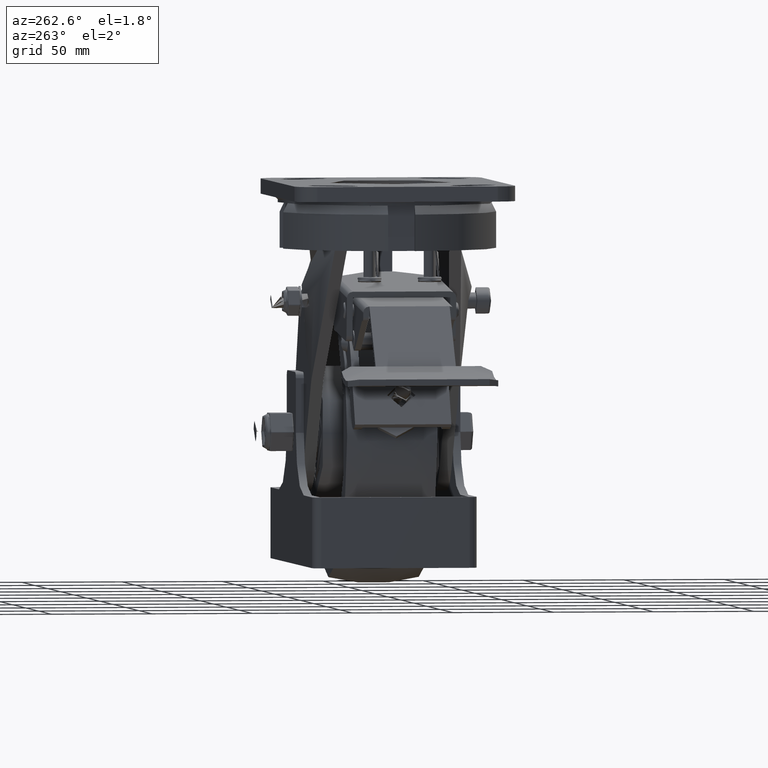
[diagram: clean part render]
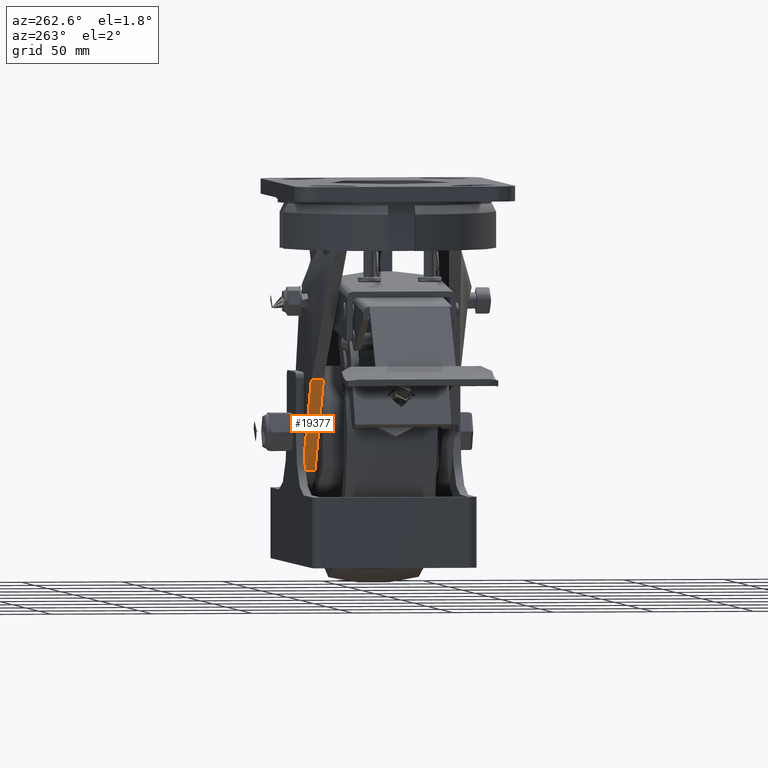
[diagram: same view with one face highlighted and labeled with its STEP entity id]
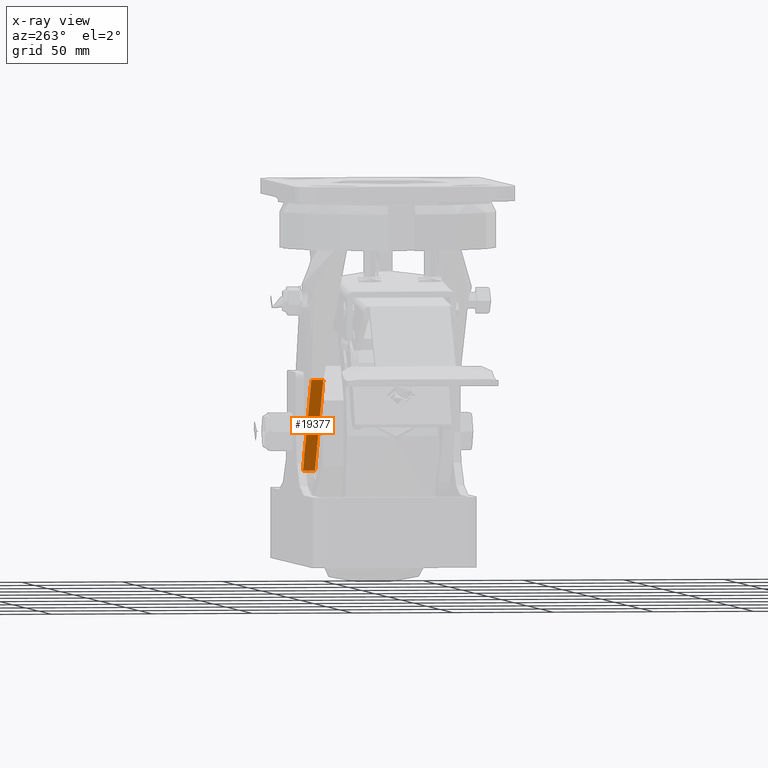
[diagram: x-ray of the same camera — body ghosted, the highlighted face saturated]
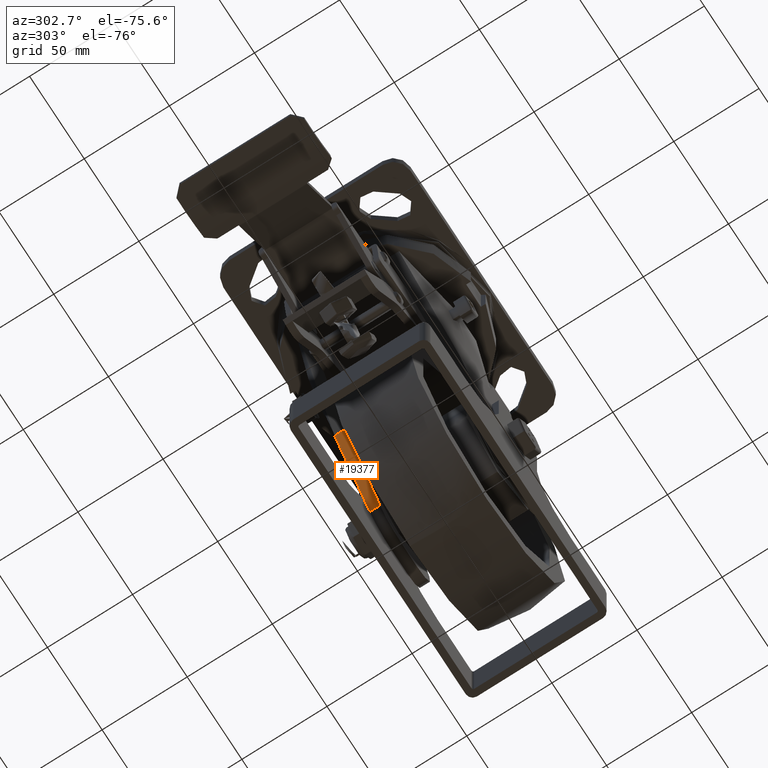
[diagram: same view with one face highlighted and labeled with its STEP entity id]
A machine part, auxiliary view. The second image highlights one B-rep face of the part: STEP entity #19377.
The next image is the same camera in x-ray: the body ghosted, the highlighted face saturated — about 0% of this face is hidden behind the body in this view.
A second angle (auxiliary view) of the same face is appended — the face is thin or edge-on in the first view.
In plain terms, the highlighted planar face has unit normal (0.8188, 0, 0.5741).
Its self-contained STEP definition (entity closure, byte-faithful):
#1668=PLANE('',#21285);
#2647=LINE('',#71436,#3915);
#2650=LINE('',#71493,#3918);
#2654=LINE('',#71502,#3922);
#2659=LINE('',#72135,#3927);
#3915=VECTOR('',#25038,1000.);
#3918=VECTOR('',#25045,1000.);
#3922=VECTOR('',#25055,1000.);
#3927=VECTOR('',#25062,1000.);
#5914=FACE_OUTER_BOUND('',#7208,.T.);
#7208=EDGE_LOOP('',(#16761,#16762,#16763,#16764));
#9498=VERTEX_POINT('',#71433);
#9499=VERTEX_POINT('',#71435);
#9506=VERTEX_POINT('',#71483);
#9507=VERTEX_POINT('',#71492);
#11997=EDGE_CURVE('',#9498,#9499,#2647,.T.);
#12006=EDGE_CURVE('',#9506,#9507,#2650,.T.);
#12011=EDGE_CURVE('',#9506,#9499,#2654,.T.);
#12023=EDGE_CURVE('',#9507,#9498,#2659,.T.);
#16761=ORIENTED_EDGE('',*,*,#11997,.F.);
#16762=ORIENTED_EDGE('',*,*,#12023,.F.);
#16763=ORIENTED_EDGE('',*,*,#12006,.F.);
#16764=ORIENTED_EDGE('',*,*,#12011,.T.);
#19377=ADVANCED_FACE('',(#5914),#1668,.F.);
#21285=AXIS2_PLACEMENT_3D('',#72136,#25063,#25064);
#25038=DIRECTION('',(-0.574059517268115,0.,0.818813575018086));
#25045=DIRECTION('',(0.574059517268115,0.,-0.818813575018086));
#25055=DIRECTION('',(0.,1.,0.));
#25062=DIRECTION('',(0.,1.,0.));
#25063=DIRECTION('center_axis',(0.818813575018086,0.,0.574059517268115));
#25064=DIRECTION('ref_axis',(0.574059517268115,0.,-0.818813575018086));
#71433=CARTESIAN_POINT('',(41.0670757782048,37.,-143.851487931703));
#71435=CARTESIAN_POINT('',(8.92119565217395,37.,-98.));
#71436=CARTESIAN_POINT('',(8.92119565217395,37.,-98.));
#71483=CARTESIAN_POINT('',(8.92119565217395,31.,-98.));
#71492=CARTESIAN_POINT('',(41.0670757782048,31.,-143.851487931703));
#71493=CARTESIAN_POINT('',(8.92119565217395,31.,-98.));
#71502=CARTESIAN_POINT('',(8.92119565217395,31.,-98.));
#72135=CARTESIAN_POINT('',(41.0670757782048,31.,-143.851487931703));
#72136=CARTESIAN_POINT('Origin',(24.9941357151894,31.,-120.925743965851));